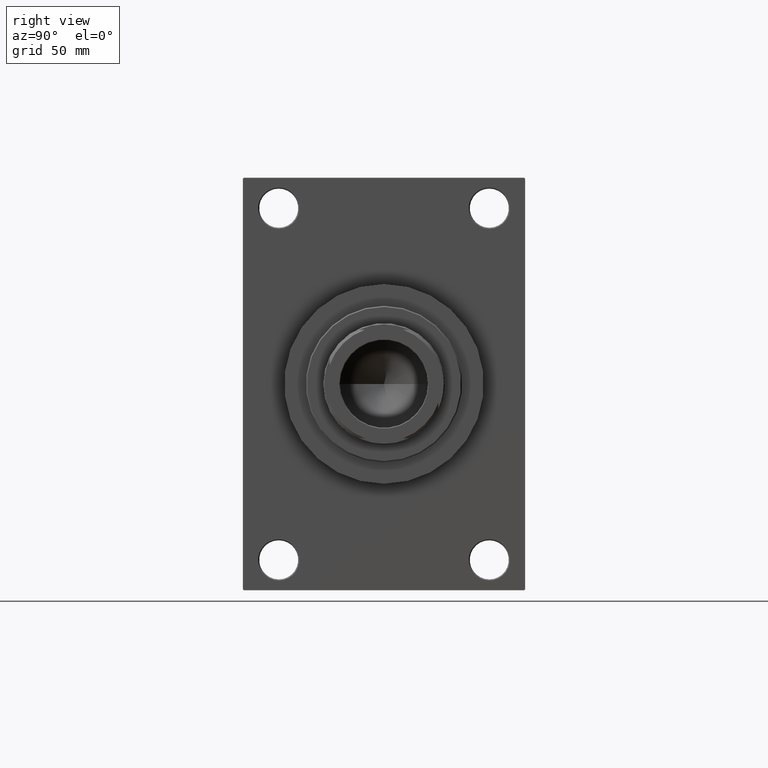
[diagram: clean part render]
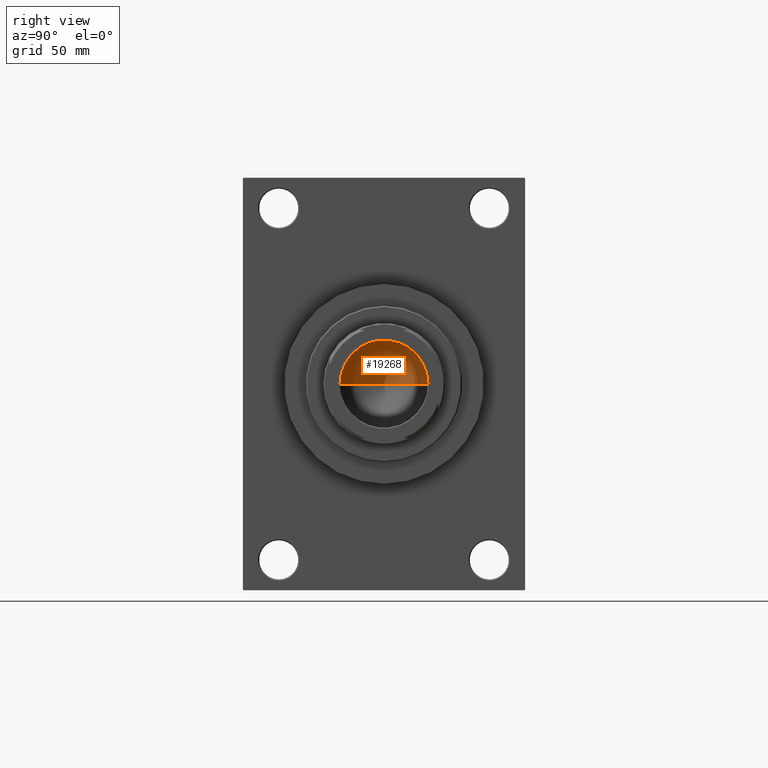
[diagram: same view with one face highlighted and labeled with its STEP entity id]
A machine part, right view. The second image highlights one B-rep face of the part: STEP entity #19268.
In plain terms, the highlighted conical surface has half-angle 59 deg.
Its self-contained STEP definition (entity closure, byte-faithful):
#3008 = CONICAL_SURFACE ( 'NONE', #29965, 20.24999999999998934, 1.029744258676652979 ) ;
#3439 = DIRECTION ( 'NONE',  ( -0.000000000000000000, -0.000000000000000000, 1.000000000000000000 ) ) ;
#7021 = LINE ( 'NONE', #21722, #7851 ) ;
#7248 = DIRECTION ( 'NONE',  ( 0.8571673007021115565, 0.000000000000000000, 0.5150380749100554878 ) ) ;
#7851 = VECTOR ( 'NONE', #7248, 1000.000000000000000 ) ;
#9033 = CARTESIAN_POINT ( 'NONE',  ( -1.584115414415908206E-14, 0.000000000000000000, 107.8325724646918928 ) ) ;
#9973 = DIRECTION ( 'NONE',  ( -0.000000000000000000, -0.000000000000000000, 1.000000000000000000 ) ) ;
#10434 = FACE_OUTER_BOUND ( 'NONE', #19300, .T. ) ;
#17236 = VERTEX_POINT ( 'NONE', #23313 ) ;
#19268 = ADVANCED_FACE ( 'NONE', ( #10434 ), #3008, .F. ) ;
#19300 = EDGE_LOOP ( 'NONE', ( #40366, #21503, #41290 ) ) ;
#21503 = ORIENTED_EDGE ( 'NONE', *, *, #37682, .T. ) ;
#21529 = CARTESIAN_POINT ( 'NONE',  ( 0.000000000000000000, 0.000000000000000000, 120.0000000000000284 ) ) ;
#21722 = CARTESIAN_POINT ( 'NONE',  ( 20.24999999999998934, 0.000000000000000000, 120.0000000000000284 ) ) ;
#21874 = DIRECTION ( 'NONE',  ( -0.8571673007021115565, 1.049727191138617710E-16, 0.5150380749100554878 ) ) ;
#23313 = CARTESIAN_POINT ( 'NONE',  ( 20.24999999999998934, 0.000000000000000000, 120.0000000000000284 ) ) ;
#24127 = VERTEX_POINT ( 'NONE', #29907 ) ;
#24700 = DIRECTION ( 'NONE',  ( 1.000000000000000000, 0.000000000000000000, 0.000000000000000000 ) ) ;
#25381 = EDGE_CURVE ( 'NONE', #32790, #17236, #7021, .T. ) ;
#25412 = CARTESIAN_POINT ( 'NONE',  ( 0.000000000000000000, 0.000000000000000000, 120.0000000000000284 ) ) ;
#25514 = CARTESIAN_POINT ( 'NONE',  ( -20.24999999999998934, 2.479909768273389117E-15, 120.0000000000000284 ) ) ;
#25866 = DIRECTION ( 'NONE',  ( 1.000000000000000000, 0.000000000000000000, 0.000000000000000000 ) ) ;
#29907 = CARTESIAN_POINT ( 'NONE',  ( -20.24999999999998934, 2.479909768273389117E-15, 120.0000000000000284 ) ) ;
#29965 = AXIS2_PLACEMENT_3D ( 'NONE', #25412, #9973, #24700 ) ;
#32790 = VERTEX_POINT ( 'NONE', #9033 ) ;
#35904 = CIRCLE ( 'NONE', #43647, 20.24999999999998934 ) ;
#37682 = EDGE_CURVE ( 'NONE', #32790, #24127, #40014, .T. ) ;
#38089 = EDGE_CURVE ( 'NONE', #24127, #17236, #35904, .T. ) ;
#40014 = LINE ( 'NONE', #25514, #46754 ) ;
#40366 = ORIENTED_EDGE ( 'NONE', *, *, #25381, .F. ) ;
#41290 = ORIENTED_EDGE ( 'NONE', *, *, #38089, .T. ) ;
#43647 = AXIS2_PLACEMENT_3D ( 'NONE', #21529, #3439, #25866 ) ;
#46754 = VECTOR ( 'NONE', #21874, 1000.000000000000000 ) ;